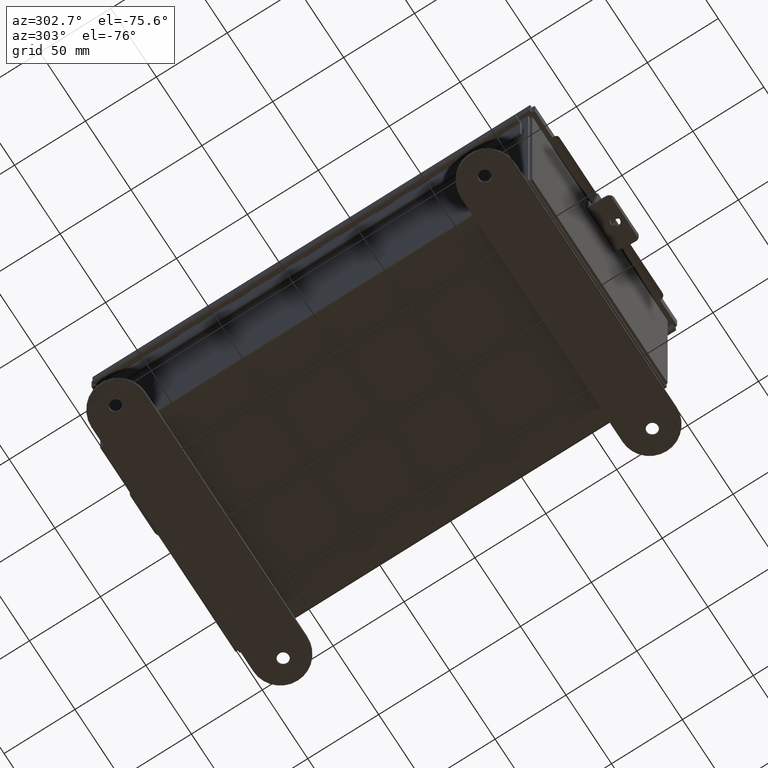
[diagram: clean part render]
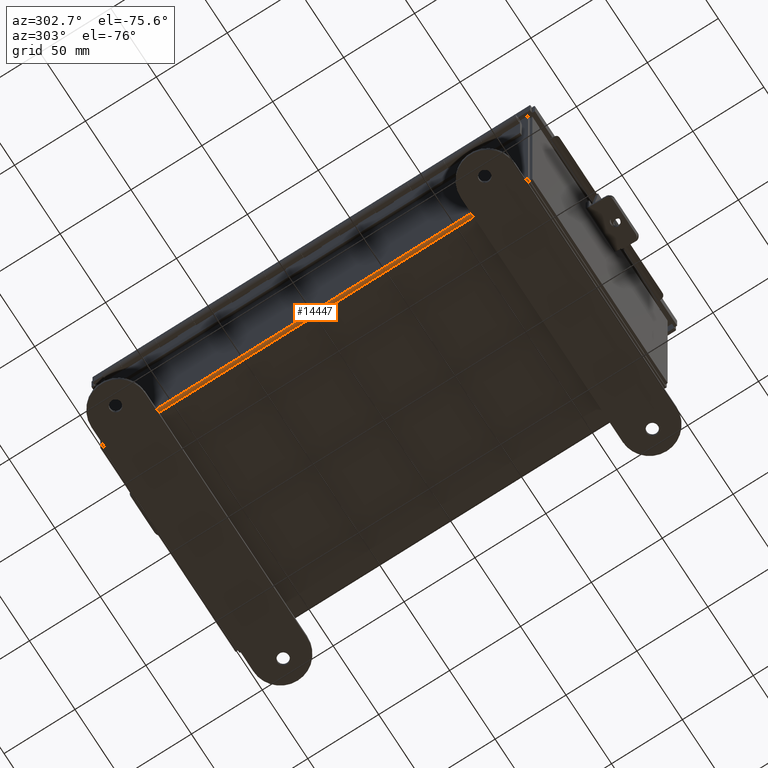
[diagram: same view with one face highlighted and labeled with its STEP entity id]
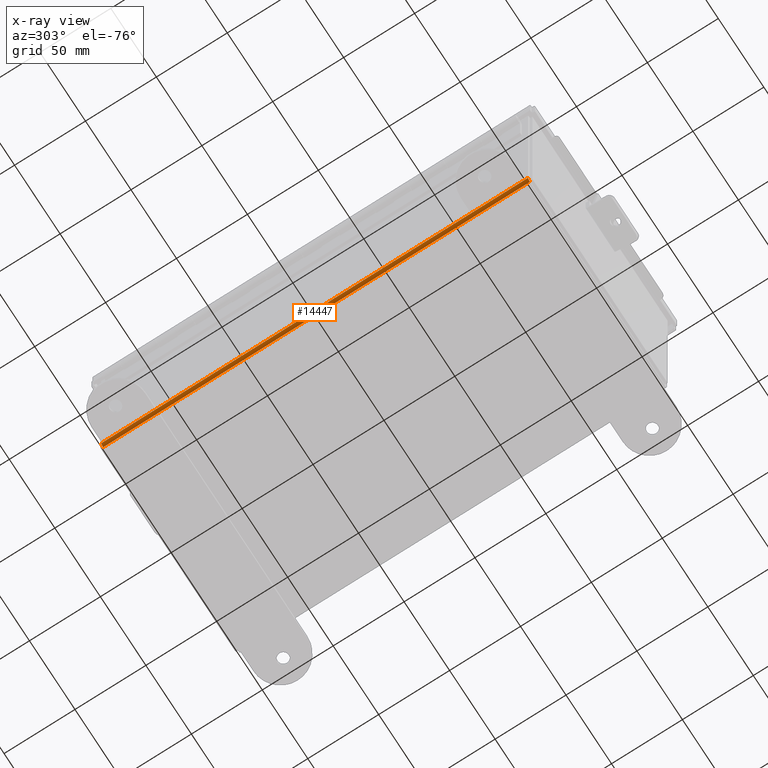
[diagram: x-ray of the same camera — body ghosted, the highlighted face saturated]
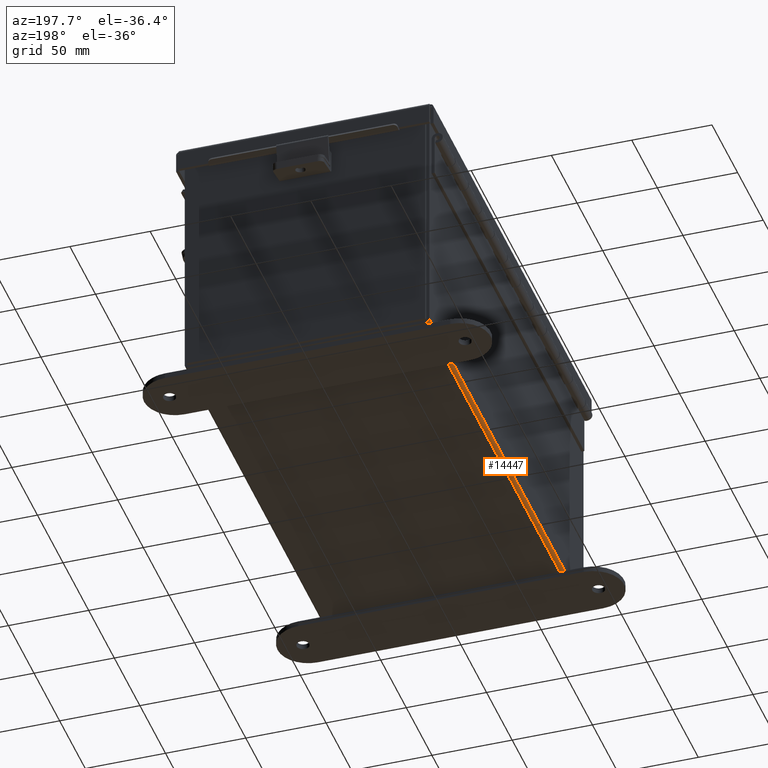
[diagram: same view with one face highlighted and labeled with its STEP entity id]
A machine part, auxiliary view. The second image highlights one B-rep face of the part: STEP entity #14447.
The next image is the same camera in x-ray: the body ghosted, the highlighted face saturated — about 0% of this face is hidden behind the body in this view.
A second angle (auxiliary view) of the same face is appended — the face is thin or edge-on in the first view.
In plain terms, the highlighted cylindrical surface (edge-blend (fillet) strip) has radius 2.2276 mm, axis along (0, -1, -0).
Its self-contained STEP definition (entity closure, byte-faithful):
#927 = VERTEX_POINT ( 'NONE', #6444 ) ;
#1046 = ORIENTED_EDGE ( 'NONE', *, *, #12435, .F. ) ;
#1148 = CIRCLE ( 'NONE', #5954, 0.08770000000000009700 ) ;
#1485 = AXIS2_PLACEMENT_3D ( 'NONE', #6179, #5021, #4202 ) ;
#1613 = CARTESIAN_POINT ( 'NONE',  ( -3.000000000000000900, -5.925299999999998200, 0.01299999999999929700 ) ) ;
#1695 = ORIENTED_EDGE ( 'NONE', *, *, #5673, .F. ) ;
#2658 = DIRECTION ( 'NONE',  ( -0.0000000000000000000, 1.000000000000000000, 8.208677865577646300E-017 ) ) ;
#2864 = CARTESIAN_POINT ( 'NONE',  ( -3.000000000000000900, 5.925300000000000000, 0.01299999999999984300 ) ) ;
#3008 = ORIENTED_EDGE ( 'NONE', *, *, #11082, .F. ) ;
#3535 = CARTESIAN_POINT ( 'NONE',  ( -2.912300000000000600, -5.925299999999998200, -0.07470000000000071000 ) ) ;
#3885 = DIRECTION ( 'NONE',  ( -1.000000000000000000, 0.0000000000000000000, -3.455694262224952200E-015 ) ) ;
#4202 = DIRECTION ( 'NONE',  ( 0.0000000000000000000, 0.0000000000000000000, -1.000000000000000000 ) ) ;
#4314 = FACE_OUTER_BOUND ( 'NONE', #10166, .T. ) ;
#5021 = DIRECTION ( 'NONE',  ( 0.0000000000000000000, -1.000000000000000000, -8.208677865577646300E-017 ) ) ;
#5042 = VERTEX_POINT ( 'NONE', #3535 ) ;
#5673 = EDGE_CURVE ( 'NONE', #13816, #5042, #13564, .T. ) ;
#5954 = AXIS2_PLACEMENT_3D ( 'NONE', #9879, #2658, #11078 ) ;
#6179 = CARTESIAN_POINT ( 'NONE',  ( -2.912300000000000600, -5.925299999999998200, 0.01299999999999939900 ) ) ;
#6222 = LINE ( 'NONE', #2864, #12226 ) ;
#6444 = CARTESIAN_POINT ( 'NONE',  ( -2.912300000000000600, 5.925300000000000000, -0.07470000000000000300 ) ) ;
#7103 = CYLINDRICAL_SURFACE ( 'NONE', #14707, 0.08770000000000026400 ) ;
#7432 = CARTESIAN_POINT ( 'NONE',  ( -2.912300000000000600, -5.925300000000000000, 0.01299999999999939900 ) ) ;
#7974 = CARTESIAN_POINT ( 'NONE',  ( -2.912300000000000600, -5.925300000000000000, -0.07470000000000071000 ) ) ;
#7996 = DIRECTION ( 'NONE',  ( -0.0000000000000000000, 1.000000000000000000, 8.208677865577646300E-017 ) ) ;
#8151 = LINE ( 'NONE', #7974, #14137 ) ;
#9367 = CARTESIAN_POINT ( 'NONE',  ( -3.000000000000000900, 5.925300000000000000, 0.01300000000000006500 ) ) ;
#9879 = CARTESIAN_POINT ( 'NONE',  ( -2.912300000000000600, 5.925300000000000000, 0.01300000000000037200 ) ) ;
#10166 = EDGE_LOOP ( 'NONE', ( #3008, #1695, #12830, #1046 ) ) ;
#11078 = DIRECTION ( 'NONE',  ( 0.0000000000000000000, 0.0000000000000000000, -1.000000000000000000 ) ) ;
#11082 = EDGE_CURVE ( 'NONE', #5042, #927, #8151, .T. ) ;
#11173 = VERTEX_POINT ( 'NONE', #9367 ) ;
#12226 = VECTOR ( 'NONE', #12824, 39.37007874015748100 ) ;
#12298 = EDGE_CURVE ( 'NONE', #13816, #11173, #6222, .T. ) ;
#12435 = EDGE_CURVE ( 'NONE', #927, #11173, #1148, .T. ) ;
#12824 = DIRECTION ( 'NONE',  ( -1.593066959076850500E-031, 1.000000000000000000, 4.610480471308228800E-017 ) ) ;
#12830 = ORIENTED_EDGE ( 'NONE', *, *, #12298, .T. ) ;
#13395 = DIRECTION ( 'NONE',  ( 0.0000000000000000000, -1.000000000000000000, -8.208677865577646300E-017 ) ) ;
#13564 = CIRCLE ( 'NONE', #1485, 0.08770000000000009700 ) ;
#13816 = VERTEX_POINT ( 'NONE', #1613 ) ;
#14137 = VECTOR ( 'NONE', #7996, 39.37007874015748100 ) ;
#14447 = ADVANCED_FACE ( 'NONE', ( #4314 ), #7103, .T. ) ;
#14707 = AXIS2_PLACEMENT_3D ( 'NONE', #7432, #13395, #3885 ) ;